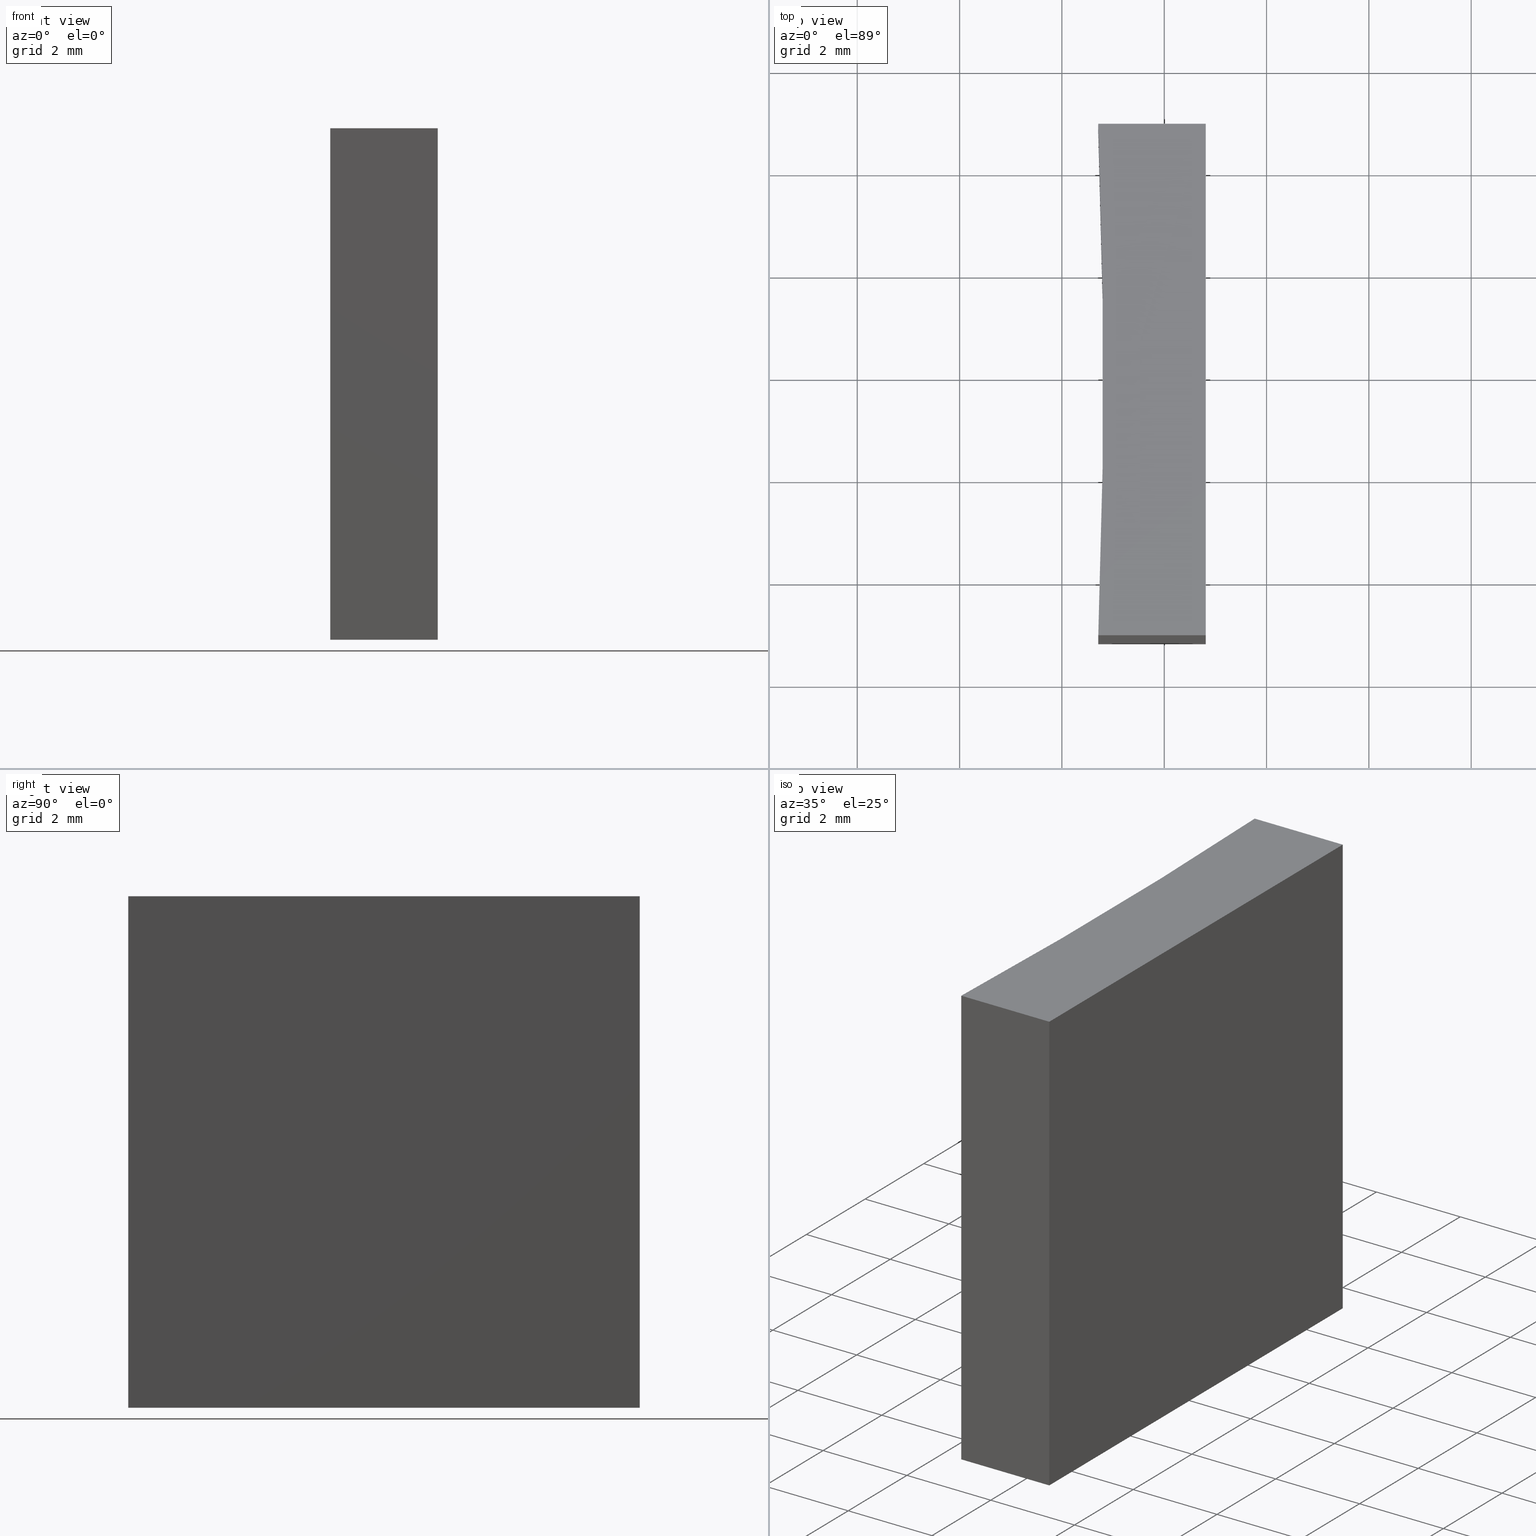
[diagram: canonical four-view strip — front | top / right | iso, engineering-drawing reading convention]
A machine part, canonical four-view strip (front | top / right | iso — engineering-drawing reading convention). The complete STEP part file that produces these views, byte-faithful:
ISO-10303-21;
HEADER;
FILE_DESCRIPTION (( 'STEP AP203' ),
    '1' );
FILE_NAME ('155571.STEP',
    '2024-05-13T06:20:23',
    ( '' ),
    ( '' ),
    'SwSTEP 2.0',
    'SolidWorks 2020',
    '' );
FILE_SCHEMA (( 'CONFIG_CONTROL_DESIGN' ));
ENDSEC;

DATA;
#1 = DIRECTION ( 'NONE',  ( -0.000000000000000000, -0.000000000000000000, -1.000000000000000000 ) ) ;
#2 = DIRECTION ( 'NONE',  ( 0.000000000000000000, 0.000000000000000000, 1.000000000000000000 ) ) ;
#3 = CARTESIAN_POINT ( 'NONE',  ( 96.71095150400097396, -65.16139251231673768, 0.000000000000000000 ) ) ;
#4 = EDGE_CURVE ( 'NONE', #154, #27, #97, .T. ) ;
#5 = EDGE_LOOP ( 'NONE', ( #62, #135, #131, #185 ) ) ;
#6 = PERSON_AND_ORGANIZATION_ROLE ( 'design_supplier' ) ;
#7 = DATE_AND_TIME ( #111, #189 ) ;
#8 = SHAPE_DEFINITION_REPRESENTATION ( #145, #35 ) ;
#9 = CARTESIAN_POINT ( 'NONE',  ( 98.81095150400096827, -55.16139251231674479, 10.00000000000000000 ) ) ;
#10 = ORIENTED_EDGE ( 'NONE', *, *, #53, .F. ) ;
#11 = CARTESIAN_POINT ( 'NONE',  ( 98.81095150400096827, -55.16139251231674479, 0.000000000000000000 ) ) ;
#12 = APPROVAL_PERSON_ORGANIZATION ( #130, #41, #184 ) ;
#13 = APPROVAL ( #39, 'δָ��' ) ;
#14 = CARTESIAN_POINT ( 'NONE',  ( 96.71095150400097396, -65.16139251231673768, 10.00000000000000000 ) ) ;
#15 = DIRECTION ( 'NONE',  ( 1.000000000000000000, 0.000000000000000000, 0.000000000000000000 ) ) ;
#16 = MANIFOLD_SOLID_BREP ( '͹̨-����1', #238 ) ;
#17 = CALENDAR_DATE ( 2024, 13, 5 ) ;
#18 = PRODUCT ( '155571', '155571', '', ( #219 ) ) ;
#19 = APPLICATION_CONTEXT ( 'configuration controlled 3d designs of mechanical parts and assemblies' ) ;
#20 = ORIENTED_EDGE ( 'NONE', *, *, #227, .T. ) ;
#21 = CARTESIAN_POINT ( 'NONE',  ( -32.44230048757687257, -60.16139251231674479, 0.000000000000000000 ) ) ;
#22 = CC_DESIGN_PERSON_AND_ORGANIZATION_ASSIGNMENT ( #116, #24, ( #218 ) ) ;
#23 = AXIS2_PLACEMENT_3D ( 'NONE', #173, #69, #52 ) ;
#24 = PERSON_AND_ORGANIZATION_ROLE ( 'classification_officer' ) ;
#25 = EDGE_CURVE ( 'NONE', #154, #105, #194, .T. ) ;
#26 = DESIGN_CONTEXT ( 'detailed design', #19, 'design' ) ;
#27 = VERTEX_POINT ( 'NONE', #159 ) ;
#28 = LINE ( 'NONE', #214, #228 ) ;
#29 = AXIS2_PLACEMENT_3D ( 'NONE', #54, #164, #90 ) ;
#30 = ORIENTED_EDGE ( 'NONE', *, *, #107, .T. ) ;
#31 = LINE ( 'NONE', #141, #106 ) ;
#32 = CARTESIAN_POINT ( 'NONE',  ( 96.71095150400097396, -65.16139251231673768, 0.000000000000000000 ) ) ;
#33 = VECTOR ( 'NONE', #1, 1000.000000000000000 ) ;
#34 = DIRECTION ( 'NONE',  ( 1.387778780781444689E-15, -1.000000000000000000, 0.000000000000000000 ) ) ;
#35 = ADVANCED_BREP_SHAPE_REPRESENTATION ( '155571', ( #16, #129 ), #95 ) ;
#36 = FACE_OUTER_BOUND ( 'NONE', #203, .T. ) ;
#37 = PERSON_AND_ORGANIZATION ( #172, #56 ) ;
#38 = AXIS2_PLACEMENT_3D ( 'NONE', #68, #66, #15 ) ;
#39 = APPROVAL_STATUS ( 'not_yet_approved' ) ;
#40 = ORIENTED_EDGE ( 'NONE', *, *, #175, .T. ) ;
#41 = APPROVAL ( #113, 'δָ��' ) ;
#42 = APPLICATION_PROTOCOL_DEFINITION ( 'international standard', 'config_control_design', 1994, #19 ) ;
#43 = PERSON_AND_ORGANIZATION ( #172, #56 ) ;
#44 = COORDINATED_UNIVERSAL_TIME_OFFSET ( 8, 0, .AHEAD. ) ;
#45 = PERSON_AND_ORGANIZATION_ROLE ( 'creator' ) ;
#46 = EDGE_LOOP ( 'NONE', ( #153, #10, #229, #76 ) ) ;
#47 = CC_DESIGN_SECURITY_CLASSIFICATION ( #218, ( #59 ) ) ;
#48 = EDGE_CURVE ( 'NONE', #112, #96, #195, .T. ) ;
#49 = DIRECTION ( 'NONE',  ( -0.000000000000000000, -0.000000000000000000, -1.000000000000000000 ) ) ;
#50 = CYLINDRICAL_SURFACE ( 'NONE', #29, 129.2500000000000284 ) ;
#51 = APPLICATION_CONTEXT ( 'configuration controlled 3d designs of mechanical parts and assemblies' ) ;
#52 = DIRECTION ( 'NONE',  ( -1.000000000000000000, 6.608470384673492648E-15, 0.000000000000000000 ) ) ;
#53 = EDGE_CURVE ( 'NONE', #124, #96, #230, .T. ) ;
#54 = CARTESIAN_POINT ( 'NONE',  ( -32.44230048757687257, -60.16139251231674479, 10.00000000000000000 ) ) ;
#55 = PLANE ( 'NONE',  #23 ) ;
#56 = ORGANIZATION ( 'δָ��', 'δָ��', '' ) ;
#57 = PRODUCT_RELATED_PRODUCT_CATEGORY ( 'detail', '', ( #18 ) ) ;
#58 = PLANE ( 'NONE',  #155 ) ;
#59 = PRODUCT_DEFINITION_FORMATION_WITH_SPECIFIED_SOURCE ( '�κ�', '', #18, .NOT_KNOWN. ) ;
#60 = FACE_OUTER_BOUND ( 'NONE', #5, .T. ) ;
#61 = DIRECTION ( 'NONE',  ( 0.000000000000000000, -1.000000000000000000, 0.000000000000000000 ) ) ;
#62 = ORIENTED_EDGE ( 'NONE', *, *, #4, .T. ) ;
#63 = APPROVAL_DATE_TIME ( #7, #13 ) ;
#64 = APPROVAL_PERSON_ORGANIZATION ( #239, #13, #128 ) ;
#65 = CC_DESIGN_PERSON_AND_ORGANIZATION_ASSIGNMENT ( #80, #6, ( #59 ) ) ;
#66 = DIRECTION ( 'NONE',  ( -0.000000000000000000, -0.000000000000000000, -1.000000000000000000 ) ) ;
#67 = ORIENTED_EDGE ( 'NONE', *, *, #82, .F. ) ;
#68 = CARTESIAN_POINT ( 'NONE',  ( -32.44230048757687257, -60.16139251231674479, 0.000000000000000000 ) ) ;
#69 = DIRECTION ( 'NONE',  ( 6.608470384673492648E-15, 1.000000000000000000, -0.000000000000000000 ) ) ;
#70 = VERTEX_POINT ( 'NONE', #32 ) ;
#71 = VECTOR ( 'NONE', #146, 1000.000000000000000 ) ;
#72 = CARTESIAN_POINT ( 'NONE',  ( 0.000000000000000000, 0.000000000000000000, 0.000000000000000000 ) ) ;
#73 = DIRECTION ( 'NONE',  ( 1.000000000000000000, -6.608470384673492648E-15, 0.000000000000000000 ) ) ;
#74 = ORIENTED_EDGE ( 'NONE', *, *, #107, .F. ) ;
#75 = VECTOR ( 'NONE', #123, 1000.000000000000000 ) ;
#76 = ORIENTED_EDGE ( 'NONE', *, *, #103, .T. ) ;
#77 = APPLICATION_PROTOCOL_DEFINITION ( 'international standard', 'config_control_design', 1994, #51 ) ;
#78 = ORIENTED_EDGE ( 'NONE', *, *, #25, .T. ) ;
#79 = CC_DESIGN_PERSON_AND_ORGANIZATION_ASSIGNMENT ( #127, #198, ( #18 ) ) ;
#80 = PERSON_AND_ORGANIZATION ( #172, #56 ) ;
#81 = APPROVAL_STATUS ( 'not_yet_approved' ) ;
#82 = EDGE_CURVE ( 'NONE', #27, #169, #102, .T. ) ;
#83 = ORIENTED_EDGE ( 'NONE', *, *, #227, .F. ) ;
#84 = LOCAL_TIME ( 14, 20, 23.00000000000000000, #180 ) ;
#85 = DIRECTION ( 'NONE',  ( -1.387778780781444492E-15, 1.000000000000000000, -0.000000000000000000 ) ) ;
#86 = EDGE_CURVE ( 'NONE', #105, #70, #207, .T. ) ;
#87 = DIRECTION ( 'NONE',  ( -0.000000000000000000, -0.000000000000000000, -1.000000000000000000 ) ) ;
#88 = ORIENTED_EDGE ( 'NONE', *, *, #86, .F. ) ;
#89 = CC_DESIGN_APPROVAL ( #13, ( #59 ) ) ;
#90 = DIRECTION ( 'NONE',  ( -1.000000000000000000, 0.000000000000000000, 0.000000000000000000 ) ) ;
#91 = CARTESIAN_POINT ( 'NONE',  ( 98.81095150400098248, -65.16139251231675189, 0.000000000000000000 ) ) ;
#92 = DIRECTION ( 'NONE',  ( 1.000000000000000000, 0.000000000000000000, -0.000000000000000000 ) ) ;
#93 = DATE_AND_TIME ( #147, #161 ) ;
#94 = DIRECTION ( 'NONE',  ( 1.000000000000000000, 0.000000000000000000, -0.000000000000000000 ) ) ;
#95 =( GEOMETRIC_REPRESENTATION_CONTEXT ( 3 ) GLOBAL_UNCERTAINTY_ASSIGNED_CONTEXT ( ( #171 ) ) GLOBAL_UNIT_ASSIGNED_CONTEXT ( ( #132, #204, #165 ) ) REPRESENTATION_CONTEXT ( 'NONE', 'WORKASPACE' ) );
#96 = VERTEX_POINT ( 'NONE', #232 ) ;
#97 = CIRCLE ( 'NONE', #210, 129.2500000000000284 ) ;
#98 = PERSON_AND_ORGANIZATION ( #172, #56 ) ;
#99 = EDGE_LOOP ( 'NONE', ( #151, #183, #190, #78 ) ) ;
#100 = CARTESIAN_POINT ( 'NONE',  ( 98.81095150400096827, -55.16139251231674479, 10.00000000000000000 ) ) ;
#101 = VECTOR ( 'NONE', #85, 1000.000000000000000 ) ;
#102 = LINE ( 'NONE', #14, #125 ) ;
#103 = EDGE_CURVE ( 'NONE', #169, #112, #28, .T. ) ;
#104 = CARTESIAN_POINT ( 'NONE',  ( 98.81095150400096827, -55.16139251231674479, 10.00000000000000000 ) ) ;
#105 = VERTEX_POINT ( 'NONE', #237 ) ;
#106 = VECTOR ( 'NONE', #176, 1000.000000000000000 ) ;
#107 = EDGE_CURVE ( 'NONE', #96, #105, #31, .T. ) ;
#108 = CARTESIAN_POINT ( 'NONE',  ( 98.81095150400098248, -65.16139251231675189, 10.00000000000000000 ) ) ;
#109 = DIRECTION ( 'NONE',  ( 0.000000000000000000, -0.000000000000000000, -1.000000000000000000 ) ) ;
#110 = PERSON_AND_ORGANIZATION_ROLE ( 'creator' ) ;
#111 = CALENDAR_DATE ( 2024, 13, 5 ) ;
#112 = VERTEX_POINT ( 'NONE', #91 ) ;
#113 = APPROVAL_STATUS ( 'not_yet_approved' ) ;
#114 = ORIENTED_EDGE ( 'NONE', *, *, #48, .F. ) ;
#115 = EDGE_CURVE ( 'NONE', #124, #154, #120, .T. ) ;
#116 = PERSON_AND_ORGANIZATION ( #172, #56 ) ;
#117 = DATE_AND_TIME ( #191, #136 ) ;
#118 = ADVANCED_FACE ( 'NONE', ( #215 ), #50, .F. ) ;
#119 = DATE_TIME_ROLE ( 'classification_date' ) ;
#120 = LINE ( 'NONE', #121, #201 ) ;
#121 = CARTESIAN_POINT ( 'NONE',  ( 96.71095150400097396, -55.16139251231674479, 10.00000000000000000 ) ) ;
#122 = LINE ( 'NONE', #104, #101 ) ;
#123 = DIRECTION ( 'NONE',  ( -0.000000000000000000, -0.000000000000000000, -1.000000000000000000 ) ) ;
#124 = VERTEX_POINT ( 'NONE', #100 ) ;
#125 = VECTOR ( 'NONE', #234, 1000.000000000000000 ) ;
#126 = CARTESIAN_POINT ( 'NONE',  ( -32.44230048757687257, -60.16139251231674479, 10.00000000000000000 ) ) ;
#127 = PERSON_AND_ORGANIZATION ( #172, #56 ) ;
#128 = APPROVAL_ROLE ( '' ) ;
#129 = AXIS2_PLACEMENT_3D ( 'NONE', #72, #199, #152 ) ;
#130 = PERSON_AND_ORGANIZATION ( #172, #56 ) ;
#131 = ORIENTED_EDGE ( 'NONE', *, *, #157, .T. ) ;
#132 =( LENGTH_UNIT ( ) NAMED_UNIT ( * ) SI_UNIT ( .MILLI., .METRE. ) );
#133 = ADVANCED_FACE ( 'NONE', ( #235 ), #55, .F. ) ;
#134 = VECTOR ( 'NONE', #162, 1000.000000000000000 ) ;
#135 = ORIENTED_EDGE ( 'NONE', *, *, #82, .T. ) ;
#136 = LOCAL_TIME ( 14, 20, 23.00000000000000000, #186 ) ;
#137 = ORIENTED_EDGE ( 'NONE', *, *, #103, .F. ) ;
#138 = CC_DESIGN_DATE_AND_TIME_ASSIGNMENT ( #167, #202, ( #188 ) ) ;
#139 = DIRECTION ( 'NONE',  ( -1.000000000000000000, -1.387778780781444689E-15, 0.000000000000000000 ) ) ;
#140 = AXIS2_PLACEMENT_3D ( 'NONE', #197, #139, #34 ) ;
#141 = CARTESIAN_POINT ( 'NONE',  ( 96.71095150400097396, -55.16139251231674479, 0.000000000000000000 ) ) ;
#142 = DIRECTION ( 'NONE',  ( 1.000000000000000000, 0.000000000000000000, 0.000000000000000000 ) ) ;
#143 = APPROVAL ( #81, 'δָ��' ) ;
#144 = CARTESIAN_POINT ( 'NONE',  ( 96.71095150400097396, -55.16139251231674479, 10.00000000000000000 ) ) ;
#145 = PRODUCT_DEFINITION_SHAPE ( 'NONE', 'NONE',  #188 ) ;
#146 = DIRECTION ( 'NONE',  ( -1.387778780781444492E-15, 1.000000000000000000, -0.000000000000000000 ) ) ;
#147 = CALENDAR_DATE ( 2024, 13, 5 ) ;
#148 = PLANE ( 'NONE',  #170 ) ;
#149 = LINE ( 'NONE', #3, #233 ) ;
#150 = LOCAL_TIME ( 14, 20, 23.00000000000000000, #44 ) ;
#151 = ORIENTED_EDGE ( 'NONE', *, *, #86, .T. ) ;
#152 = DIRECTION ( 'NONE',  ( 1.000000000000000000, 0.000000000000000000, 0.000000000000000000 ) ) ;
#153 = ORIENTED_EDGE ( 'NONE', *, *, #48, .T. ) ;
#154 = VERTEX_POINT ( 'NONE', #144 ) ;
#155 = AXIS2_PLACEMENT_3D ( 'NONE', #126, #2, #94 ) ;
#156 = ORIENTED_EDGE ( 'NONE', *, *, #25, .F. ) ;
#157 = EDGE_CURVE ( 'NONE', #169, #124, #122, .T. ) ;
#158 = PLANE ( 'NONE',  #140 ) ;
#159 = CARTESIAN_POINT ( 'NONE',  ( 96.71095150400097396, -65.16139251231673768, 10.00000000000000000 ) ) ;
#160 = ADVANCED_FACE ( 'NONE', ( #216 ), #158, .F. ) ;
#161 = LOCAL_TIME ( 14, 20, 23.00000000000000000, #178 ) ;
#162 = DIRECTION ( 'NONE',  ( -0.000000000000000000, -0.000000000000000000, -1.000000000000000000 ) ) ;
#163 = CARTESIAN_POINT ( 'NONE',  ( -32.44230048757687257, -60.16139251231674479, 10.00000000000000000 ) ) ;
#164 = DIRECTION ( 'NONE',  ( -0.000000000000000000, -0.000000000000000000, -1.000000000000000000 ) ) ;
#165 =( NAMED_UNIT ( * ) SI_UNIT ( $, .STERADIAN. ) SOLID_ANGLE_UNIT ( ) );
#166 = AXIS2_PLACEMENT_3D ( 'NONE', #21, #220, #92 ) ;
#167 = DATE_AND_TIME ( #17, #84 ) ;
#168 = CC_DESIGN_APPROVAL ( #41, ( #188 ) ) ;
#169 = VERTEX_POINT ( 'NONE', #108 ) ;
#170 = AXIS2_PLACEMENT_3D ( 'NONE', #182, #61, #109 ) ;
#171 = UNCERTAINTY_MEASURE_WITH_UNIT (LENGTH_MEASURE( 1.000000000000000082E-05 ), #132, 'distance_accuracy_value', 'NONE');
#172 = PERSON ( 'δָ��', 'δָ��', 'δָ��', ('δָ��'), ('δָ��'), ('δָ��') ) ;
#173 = CARTESIAN_POINT ( 'NONE',  ( 96.71095150400097396, -65.16139251231673768, 10.00000000000000000 ) ) ;
#174 = CARTESIAN_POINT ( 'NONE',  ( 96.71095150400097396, -55.16139251231674479, 10.00000000000000000 ) ) ;
#175 = EDGE_CURVE ( 'NONE', #27, #70, #177, .T. ) ;
#176 = DIRECTION ( 'NONE',  ( -1.000000000000000000, -0.000000000000000000, -0.000000000000000000 ) ) ;
#177 = LINE ( 'NONE', #213, #33 ) ;
#178 = COORDINATED_UNIVERSAL_TIME_OFFSET ( 8, 0, .AHEAD. ) ;
#179 = ADVANCED_FACE ( 'NONE', ( #181 ), #148, .F. ) ;
#180 = COORDINATED_UNIVERSAL_TIME_OFFSET ( 8, 0, .AHEAD. ) ;
#181 = FACE_OUTER_BOUND ( 'NONE', #192, .T. ) ;
#182 = CARTESIAN_POINT ( 'NONE',  ( 96.71095150400097396, -55.16139251231674479, 10.00000000000000000 ) ) ;
#183 = ORIENTED_EDGE ( 'NONE', *, *, #175, .F. ) ;
#184 = APPROVAL_ROLE ( '' ) ;
#185 = ORIENTED_EDGE ( 'NONE', *, *, #115, .T. ) ;
#186 = COORDINATED_UNIVERSAL_TIME_OFFSET ( 8, 0, .AHEAD. ) ;
#187 = DATE_AND_TIME ( #226, #150 ) ;
#188 = PRODUCT_DEFINITION ( 'δ֪', '', #59, #26 ) ;
#189 = LOCAL_TIME ( 14, 20, 23.00000000000000000, #200 ) ;
#190 = ORIENTED_EDGE ( 'NONE', *, *, #4, .F. ) ;
#191 = CALENDAR_DATE ( 2024, 13, 5 ) ;
#192 = EDGE_LOOP ( 'NONE', ( #30, #156, #212, #225 ) ) ;
#193 = DIRECTION ( 'NONE',  ( -1.000000000000000000, -0.000000000000000000, -0.000000000000000000 ) ) ;
#194 = LINE ( 'NONE', #174, #75 ) ;
#195 = LINE ( 'NONE', #11, #71 ) ;
#196 = CC_DESIGN_APPROVAL ( #143, ( #218 ) ) ;
#197 = CARTESIAN_POINT ( 'NONE',  ( 98.81095150400096827, -55.16139251231674479, 10.00000000000000000 ) ) ;
#198 = PERSON_AND_ORGANIZATION_ROLE ( 'design_owner' ) ;
#199 = DIRECTION ( 'NONE',  ( 0.000000000000000000, 0.000000000000000000, 1.000000000000000000 ) ) ;
#200 = COORDINATED_UNIVERSAL_TIME_OFFSET ( 8, 0, .AHEAD. ) ;
#201 = VECTOR ( 'NONE', #193, 1000.000000000000000 ) ;
#202 = DATE_TIME_ROLE ( 'creation_date' ) ;
#203 = EDGE_LOOP ( 'NONE', ( #88, #74, #114, #83 ) ) ;
#204 =( NAMED_UNIT ( * ) PLANE_ANGLE_UNIT ( ) SI_UNIT ( $, .RADIAN. ) );
#205 = EDGE_LOOP ( 'NONE', ( #20, #137, #67, #40 ) ) ;
#206 = APPROVAL_ROLE ( '' ) ;
#207 = CIRCLE ( 'NONE', #38, 129.2500000000000284 ) ;
#208 = APPROVAL_DATE_TIME ( #187, #143 ) ;
#209 = CC_DESIGN_PERSON_AND_ORGANIZATION_ASSIGNMENT ( #43, #45, ( #59 ) ) ;
#210 = AXIS2_PLACEMENT_3D ( 'NONE', #163, #87, #142 ) ;
#211 = SECURITY_CLASSIFICATION_LEVEL ( 'unclassified' ) ;
#212 = ORIENTED_EDGE ( 'NONE', *, *, #115, .F. ) ;
#213 = CARTESIAN_POINT ( 'NONE',  ( 96.71095150400097396, -65.16139251231673768, 10.00000000000000000 ) ) ;
#214 = CARTESIAN_POINT ( 'NONE',  ( 98.81095150400098248, -65.16139251231675189, 10.00000000000000000 ) ) ;
#215 = FACE_OUTER_BOUND ( 'NONE', #99, .T. ) ;
#216 = FACE_OUTER_BOUND ( 'NONE', #46, .T. ) ;
#217 = ADVANCED_FACE ( 'NONE', ( #36 ), #223, .F. ) ;
#218 = SECURITY_CLASSIFICATION ( '', '', #211 ) ;
#219 = MECHANICAL_CONTEXT ( 'NONE', #51, 'mechanical' ) ;
#220 = DIRECTION ( 'NONE',  ( 0.000000000000000000, 0.000000000000000000, 1.000000000000000000 ) ) ;
#221 = ADVANCED_FACE ( 'NONE', ( #60 ), #58, .T. ) ;
#222 = APPROVAL_DATE_TIME ( #93, #41 ) ;
#223 = PLANE ( 'NONE',  #166 ) ;
#224 = APPROVAL_PERSON_ORGANIZATION ( #98, #143, #206 ) ;
#225 = ORIENTED_EDGE ( 'NONE', *, *, #53, .T. ) ;
#226 = CALENDAR_DATE ( 2024, 13, 5 ) ;
#227 = EDGE_CURVE ( 'NONE', #70, #112, #149, .T. ) ;
#228 = VECTOR ( 'NONE', #49, 1000.000000000000000 ) ;
#229 = ORIENTED_EDGE ( 'NONE', *, *, #157, .F. ) ;
#230 = LINE ( 'NONE', #9, #134 ) ;
#231 = CC_DESIGN_DATE_AND_TIME_ASSIGNMENT ( #117, #119, ( #218 ) ) ;
#232 = CARTESIAN_POINT ( 'NONE',  ( 98.81095150400096827, -55.16139251231674479, 0.000000000000000000 ) ) ;
#233 = VECTOR ( 'NONE', #73, 1000.000000000000000 ) ;
#234 = DIRECTION ( 'NONE',  ( 1.000000000000000000, -6.608470384673492648E-15, 0.000000000000000000 ) ) ;
#235 = FACE_OUTER_BOUND ( 'NONE', #205, .T. ) ;
#236 = CC_DESIGN_PERSON_AND_ORGANIZATION_ASSIGNMENT ( #37, #110, ( #188 ) ) ;
#237 = CARTESIAN_POINT ( 'NONE',  ( 96.71095150400097396, -55.16139251231674479, 0.000000000000000000 ) ) ;
#238 = CLOSED_SHELL ( 'NONE', ( #118, #133, #160, #179, #221, #217 ) ) ;
#239 = PERSON_AND_ORGANIZATION ( #172, #56 ) ;
ENDSEC;
END-ISO-10303-21;
